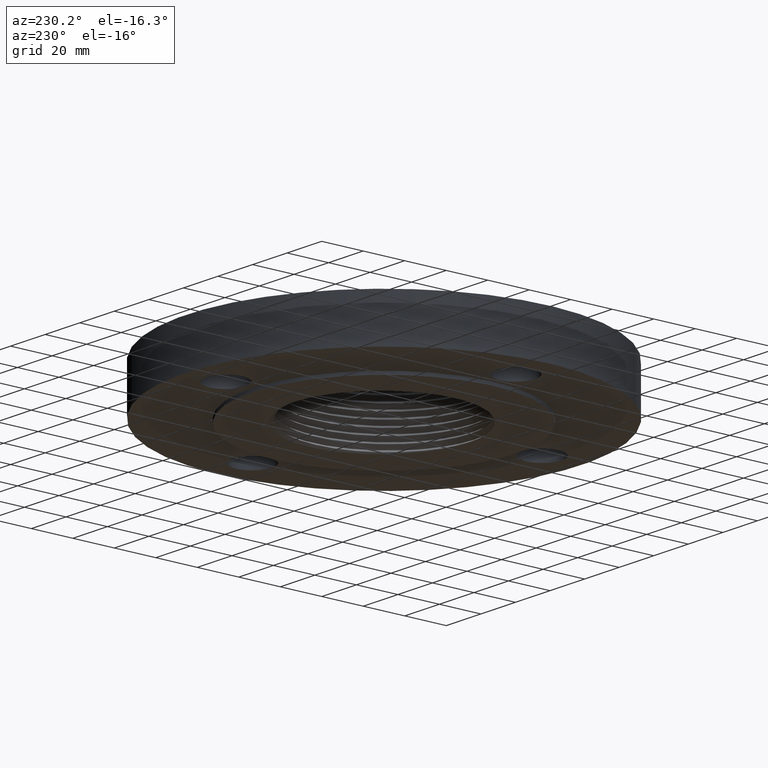
[diagram: clean part render]
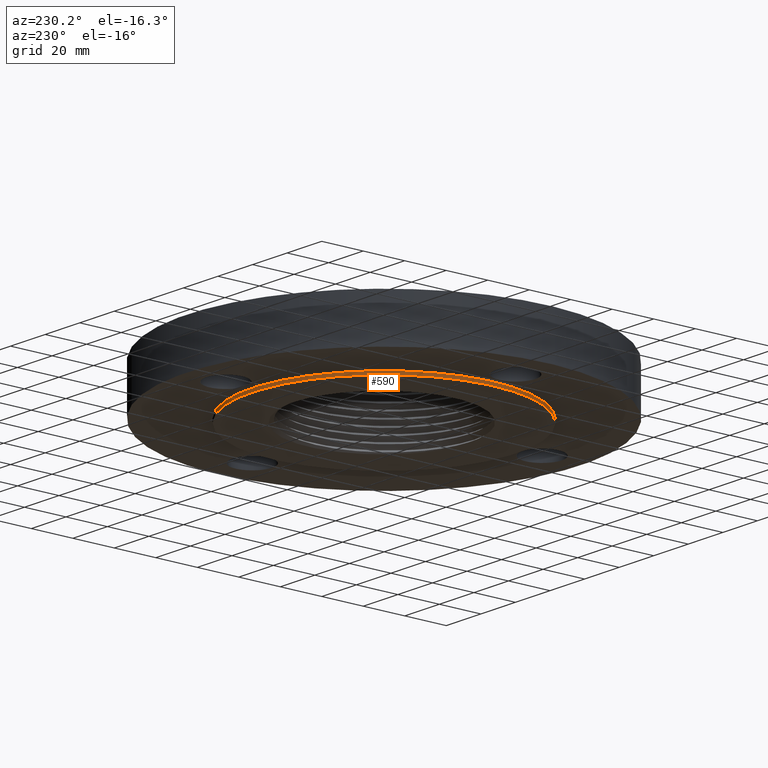
[diagram: same view with one face highlighted and labeled with its STEP entity id]
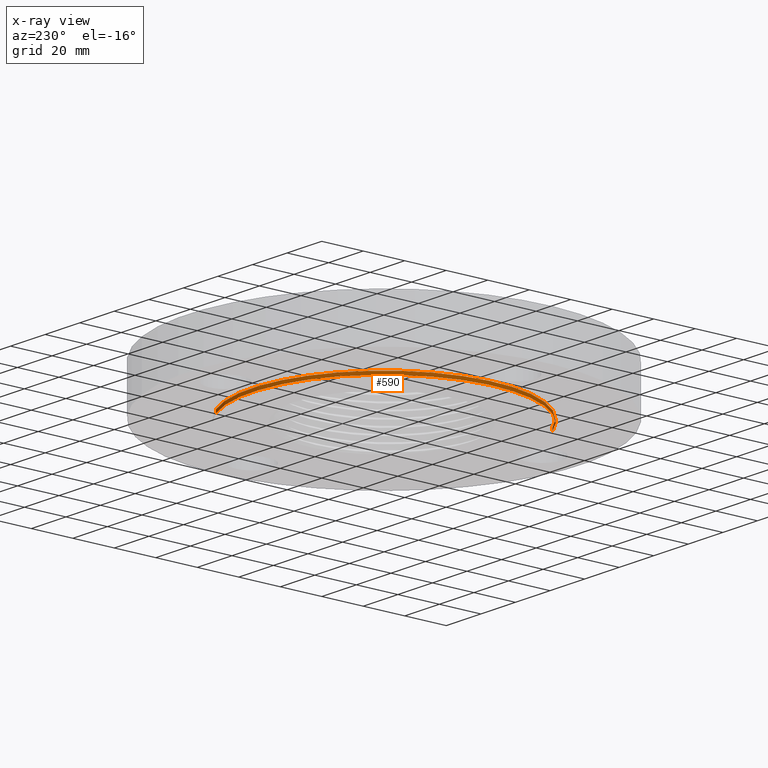
[diagram: x-ray of the same camera — body ghosted, the highlighted face saturated]
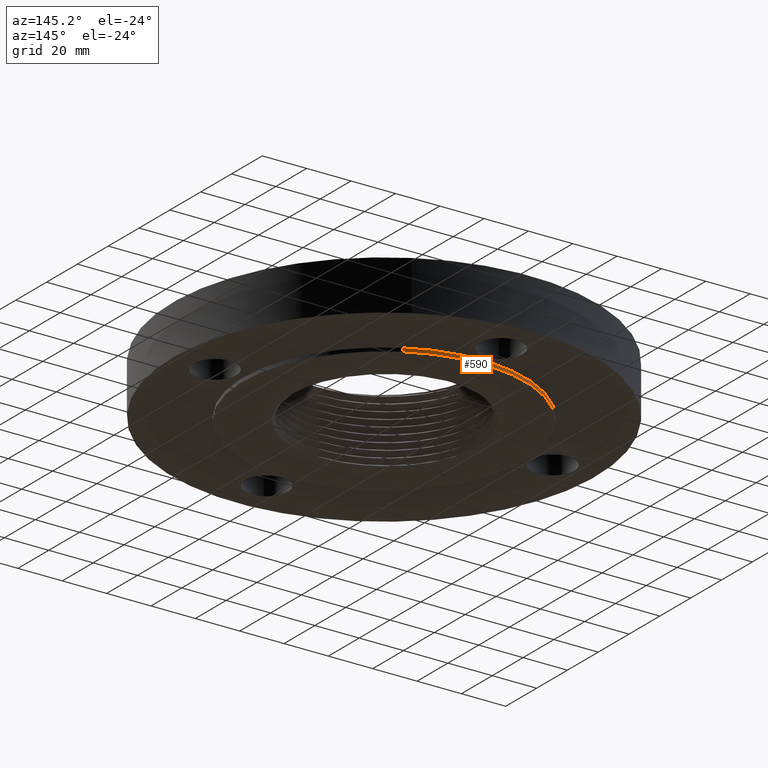
[diagram: same view with one face highlighted and labeled with its STEP entity id]
A machine part, auxiliary view. The second image highlights one B-rep face of the part: STEP entity #590.
The next image is the same camera in x-ray: the body ghosted, the highlighted face saturated — about 0% of this face is hidden behind the body in this view.
A second angle (auxiliary view) of the same face is appended — the face is thin or edge-on in the first view.
In plain terms, the highlighted cylindrical surface (partial cylindrical patch) has radius 63.5 mm, axis along (0, 0, -1).
Its self-contained STEP definition (entity closure, byte-faithful):
#51=AXIS2_PLACEMENT_3D('Circle Axis2P3D',#49,#50,$) ;
#542=AXIS2_PLACEMENT_3D('Circle Axis2P3D',#540,#541,$) ;
#565=AXIS2_PLACEMENT_3D('Cylinder Axis2P3D',#562,#563,#564) ;
#44=CARTESIAN_POINT('Vertex',(1.19856384652,2.19395640473,-0.0625000000002)) ;
#46=CARTESIAN_POINT('Vertex',(-1.19856384652,-2.19395640473,-0.0625000000002)) ;
#49=CARTESIAN_POINT('Axis2P3D Location',(0.,0.,-0.0625000000003)) ;
#535=CARTESIAN_POINT('Vertex',(1.19856384652,2.19395640473,4.19611851827E-016)) ;
#537=CARTESIAN_POINT('Vertex',(-1.19856384652,-2.19395640473,4.19611851827E-016)) ;
#540=CARTESIAN_POINT('Axis2P3D Location',(0.,0.,0.)) ;
#562=CARTESIAN_POINT('Axis2P3D Location',(0.,0.,0.528750000002)) ;
#567=CARTESIAN_POINT('Line Origine',(1.19856384652,2.19395640473,-0.0312500000001)) ;
#572=CARTESIAN_POINT('Line Origine',(-1.19856384652,-2.19395640473,-0.0312500000001)) ;
#50=DIRECTION('Axis2P3D Direction',(0.,0.,-0.0393700787402)) ;
#541=DIRECTION('Axis2P3D Direction',(0.,0.,-0.0393700787402)) ;
#563=DIRECTION('Axis2P3D Direction',(0.,0.,-0.0393700787402)) ;
#564=DIRECTION('Axis2P3D XDirection',(-0.0188750212049,-0.0345504945626,0.)) ;
#568=DIRECTION('Vector Direction',(0.,0.,-0.0393700787402)) ;
#573=DIRECTION('Vector Direction',(0.,0.,-0.0393700787402)) ;
#569=VECTOR('Line Direction',#568,0.0393700787402) ;
#574=VECTOR('Line Direction',#573,0.0393700787402) ;
#585=ORIENTED_EDGE('',*,*,#53,.F.) ;
#586=ORIENTED_EDGE('',*,*,#576,.T.) ;
#587=ORIENTED_EDGE('',*,*,#544,.T.) ;
#588=ORIENTED_EDGE('',*,*,#571,.F.) ;
#590=ADVANCED_FACE('PartBody',(#589),#566,.T.) ;
#52=CIRCLE('generated circle',#51,2.50000000001) ;
#543=CIRCLE('generated circle',#542,2.50000000001) ;
#566=CYLINDRICAL_SURFACE('generated cylinder',#565,2.50000000001) ;
#53=EDGE_CURVE('',#47,#45,#52,.T.) ;
#544=EDGE_CURVE('',#538,#536,#543,.T.) ;
#571=EDGE_CURVE('',#45,#536,#570,.F.) ;
#576=EDGE_CURVE('',#47,#538,#575,.F.) ;
#584=EDGE_LOOP('',(#585,#586,#587,#588)) ;
#589=FACE_OUTER_BOUND('',#584,.T.) ;
#570=LINE('Line',#567,#569) ;
#575=LINE('Line',#572,#574) ;
#45=VERTEX_POINT('',#44) ;
#47=VERTEX_POINT('',#46) ;
#536=VERTEX_POINT('',#535) ;
#538=VERTEX_POINT('',#537) ;